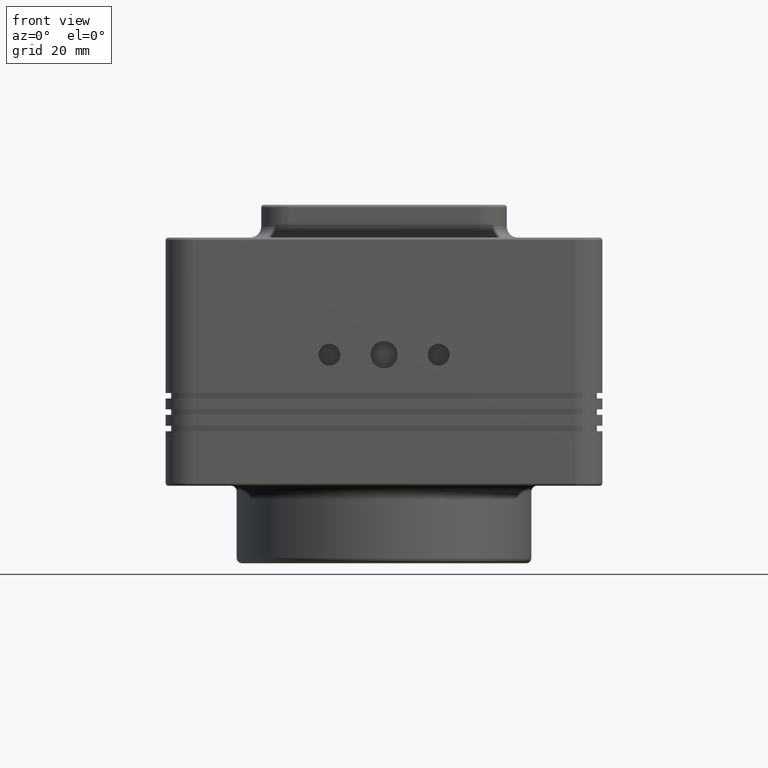
[diagram: clean part render]
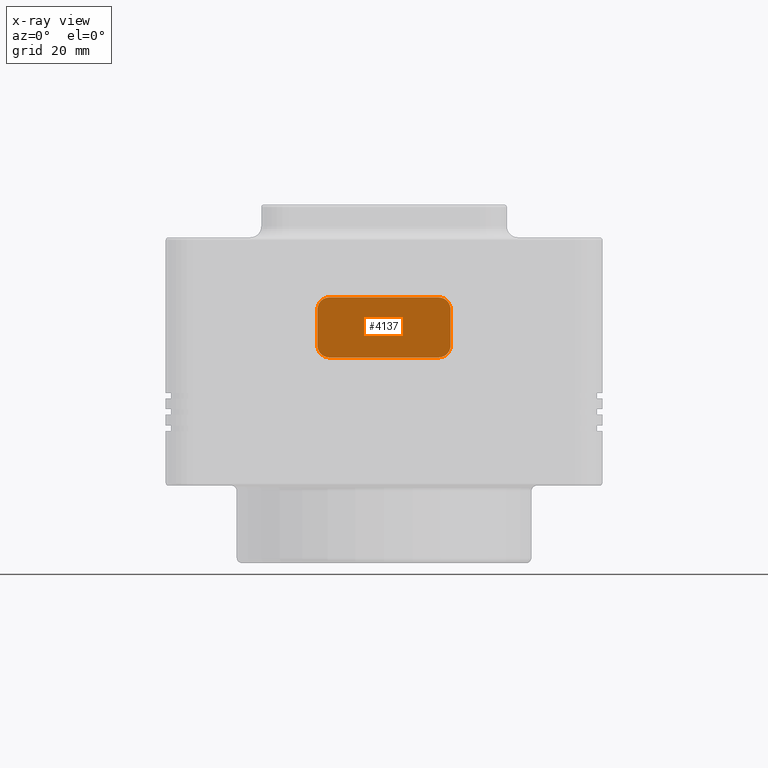
[diagram: x-ray — body ghosted, one internal face saturated and labeled with its STEP entity id]
A machine part, front view, then the same camera in x-ray: the body is ghosted and one INTERNAL B-rep face — a face not visible from any outside direction — is saturated and labeled: STEP entity #4137.
In plain terms, the highlighted planar face has unit normal (0, 1, 0).
Its self-contained STEP definition (entity closure, byte-faithful):
#667 = EDGE_CURVE ( 'NONE', #669, #20152, #16665, .T. ) ;
#669 = VERTEX_POINT ( 'NONE', #13549 ) ;
#1034 = AXIS2_PLACEMENT_3D ( 'NONE', #20184, #37039, #30965 ) ;
#2875 = VECTOR ( 'NONE', #22651, 1000.000000000000000 ) ;
#3050 = VECTOR ( 'NONE', #21389, 1000.000000000000000 ) ;
#3752 = LINE ( 'NONE', #29183, #12636 ) ;
#4137 = ADVANCED_FACE ( 'NONE', ( #12818 ), #24722, .F. ) ;
#4204 = EDGE_CURVE ( 'NONE', #23703, #34566, #31869, .T. ) ;
#4830 = DIRECTION ( 'NONE',  ( 0.000000000000000000, 2.019483917365790222E-28, -1.000000000000000000 ) ) ;
#5663 = CIRCLE ( 'NONE', #24149, 2.199999999955799979 ) ;
#7642 = DIRECTION ( 'NONE',  ( 1.000000000000000000, 1.116803177849584039E-37, -5.530141479444609501E-10 ) ) ;
#8337 = ORIENTED_EDGE ( 'NONE', *, *, #667, .F. ) ;
#8884 = EDGE_CURVE ( 'NONE', #11972, #23703, #3752, .T. ) ;
#8952 = LINE ( 'NONE', #45675, #3050 ) ;
#8966 = CARTESIAN_POINT ( 'NONE',  ( -1.019462292362049993E-08, 31.60000000000000142, -7.800000007842869287 ) ) ;
#11236 = CARTESIAN_POINT ( 'NONE',  ( -9.999999999125240180, 31.60000000000000142, 18.69999999629004961 ) ) ;
#11678 = VERTEX_POINT ( 'NONE', #32036 ) ;
#11972 = VERTEX_POINT ( 'NONE', #11236 ) ;
#12222 = CARTESIAN_POINT ( 'NONE',  ( -10.00000000280109980, 31.60000000000000142, 9.899999996334249985 ) ) ;
#12330 = EDGE_CURVE ( 'NONE', #24563, #11678, #21963, .T. ) ;
#12636 = VECTOR ( 'NONE', #7642, 1000.000000000000000 ) ;
#12818 = FACE_OUTER_BOUND ( 'NONE', #26421, .T. ) ;
#12979 = CARTESIAN_POINT ( 'NONE',  ( 10.00000000087477936, 31.60000000000000142, 18.69999998521399931 ) ) ;
#13299 = AXIS2_PLACEMENT_3D ( 'NONE', #25552, #25277, #17225 ) ;
#13479 = EDGE_CURVE ( 'NONE', #11678, #11972, #5663, .T. ) ;
#13495 = ORIENTED_EDGE ( 'NONE', *, *, #17662, .F. ) ;
#13549 = CARTESIAN_POINT ( 'NONE',  ( 12.19999999443287919, 31.60000000000000142, 9.899999987061029572 ) ) ;
#14198 = CARTESIAN_POINT ( 'NONE',  ( -12.20000000000000107, 31.60000000000000142, -7.800000007842859517 ) ) ;
#14607 = LINE ( 'NONE', #40013, #2875 ) ;
#16665 = CIRCLE ( 'NONE', #1034, 2.199999997233999416 ) ;
#17225 = DIRECTION ( 'NONE',  ( -4.177127399230141998E-10, 0.000000000000000000, -1.000000000000000000 ) ) ;
#17662 = EDGE_CURVE ( 'NONE', #46398, #24563, #53987, .T. ) ;
#20152 = VERTEX_POINT ( 'NONE', #45045 ) ;
#20184 = CARTESIAN_POINT ( 'NONE',  ( 9.999999997198898427, 31.60000000000000142, 9.899999987979988703 ) ) ;
#20790 = DIRECTION ( 'NONE',  ( -8.435641603570319769E-38, 1.000000000000000000, 3.523674967251405011E-47 ) ) ;
#21389 = DIRECTION ( 'NONE',  ( -4.129314739485400088E-10, 2.019483917365790222E-28, -1.000000000000000000 ) ) ;
#21696 = DIRECTION ( 'NONE',  ( 5.169878828456420672E-26, -2.019483917365790222E-28, 1.000000000000000000 ) ) ;
#21963 = LINE ( 'NONE', #14198, #25462 ) ;
#22651 = DIRECTION ( 'NONE',  ( -1.000000000000000000, -8.403779630688749182E-38, 4.161350114464200378E-10 ) ) ;
#23703 = VERTEX_POINT ( 'NONE', #12979 ) ;
#24149 = AXIS2_PLACEMENT_3D ( 'NONE', #54520, #50109, #49570 ) ;
#24563 = VERTEX_POINT ( 'NONE', #35496 ) ;
#24722 = PLANE ( 'NONE',  #33572 ) ;
#24995 = ORIENTED_EDGE ( 'NONE', *, *, #13479, .F. ) ;
#25277 = DIRECTION ( 'NONE',  ( -8.435641603533269612E-38, 1.000000000000000000, 3.523674967220455233E-47 ) ) ;
#25462 = VECTOR ( 'NONE', #21696, 1000.000000000000000 ) ;
#25552 = CARTESIAN_POINT ( 'NONE',  ( 9.999999999955809571, 31.60000000000000142, 16.49999998797999723 ) ) ;
#26421 = EDGE_LOOP ( 'NONE', ( #13495, #52669, #8337, #39423, #52855, #34018, #24995, #45287 ) ) ;
#29079 = DIRECTION ( 'NONE',  ( -4.177127399248490932E-10, 0.000000000000000000, -1.000000000000000000 ) ) ;
#29183 = CARTESIAN_POINT ( 'NONE',  ( 4.460237734704719514E-09, 31.60000000000000142, 18.69999999075995234 ) ) ;
#30965 = DIRECTION ( 'NONE',  ( -4.177127399230141998E-10, 0.000000000000000000, -1.000000000000000000 ) ) ;
#31869 = CIRCLE ( 'NONE', #13299, 2.199999997233999416 ) ;
#31881 = CARTESIAN_POINT ( 'NONE',  ( 12.19999999717401984, 31.60000000000000142, 16.49999998706104876 ) ) ;
#32036 = CARTESIAN_POINT ( 'NONE',  ( -12.20000000000000107, 31.60000000000000142, 16.49999999725325139 ) ) ;
#33114 = EDGE_CURVE ( 'NONE', #34566, #669, #8952, .T. ) ;
#33572 = AXIS2_PLACEMENT_3D ( 'NONE', #8966, #50352, #4830 ) ;
#34018 = ORIENTED_EDGE ( 'NONE', *, *, #8884, .F. ) ;
#34566 = VERTEX_POINT ( 'NONE', #31881 ) ;
#35496 = CARTESIAN_POINT ( 'NONE',  ( -12.20000000000000107, 31.60000000000000142, 9.900000003923219438 ) ) ;
#37039 = DIRECTION ( 'NONE',  ( -8.435641603533269612E-38, 1.000000000000000000, 3.523674967220455233E-47 ) ) ;
#39423 = ORIENTED_EDGE ( 'NONE', *, *, #33114, .F. ) ;
#40013 = CARTESIAN_POINT ( 'NONE',  ( -3.744496032687114356E-09, 31.60000000000000142, 7.699999994923129698 ) ) ;
#41205 = EDGE_CURVE ( 'NONE', #20152, #46398, #14607, .T. ) ;
#45045 = CARTESIAN_POINT ( 'NONE',  ( 9.999999989609939632, 31.60000000000000142, 7.699999990761789981 ) ) ;
#45287 = ORIENTED_EDGE ( 'NONE', *, *, #12330, .F. ) ;
#45675 = CARTESIAN_POINT ( 'NONE',  ( 12.19999998713982059, 31.60000000000000142, -7.800000012880629718 ) ) ;
#46398 = VERTEX_POINT ( 'NONE', #53874 ) ;
#49570 = DIRECTION ( 'NONE',  ( -4.177127394062274769E-10, 0.000000000000000000, -1.000000000000000000 ) ) ;
#50109 = DIRECTION ( 'NONE',  ( -8.435641593096839637E-38, 1.000000000000000000, 3.523674958501589803E-47 ) ) ;
#50352 = DIRECTION ( 'NONE',  ( 0.000000000000000000, 1.000000000000000000, 2.019483917365790222E-28 ) ) ;
#52669 = ORIENTED_EDGE ( 'NONE', *, *, #41205, .F. ) ;
#52855 = ORIENTED_EDGE ( 'NONE', *, *, #4204, .F. ) ;
#53131 = AXIS2_PLACEMENT_3D ( 'NONE', #12222, #20790, #29079 ) ;
#53874 = CARTESIAN_POINT ( 'NONE',  ( -10.00000000372008024, 31.60000000000000142, 7.699999999084490732 ) ) ;
#53987 = CIRCLE ( 'NONE', #53131, 2.199999997224335591 ) ;
#54520 = CARTESIAN_POINT ( 'NONE',  ( -10.00000000004420109, 31.60000000000000142, 16.49999999633424963 ) ) ;